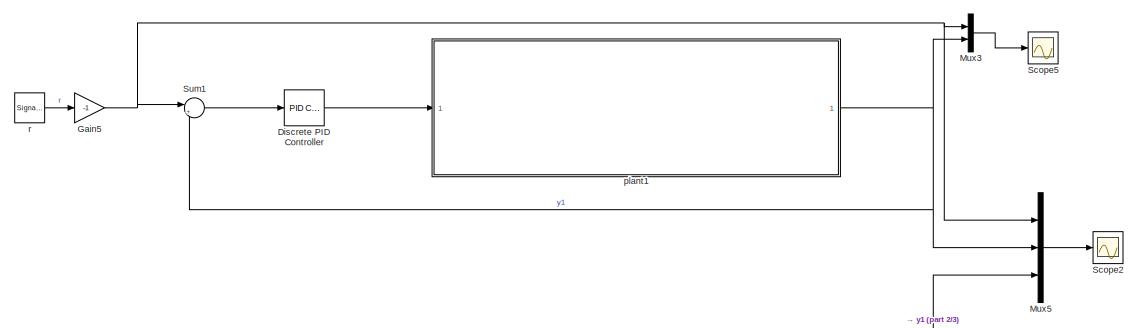
[diagram: root canvas - part 1/3, top left region]
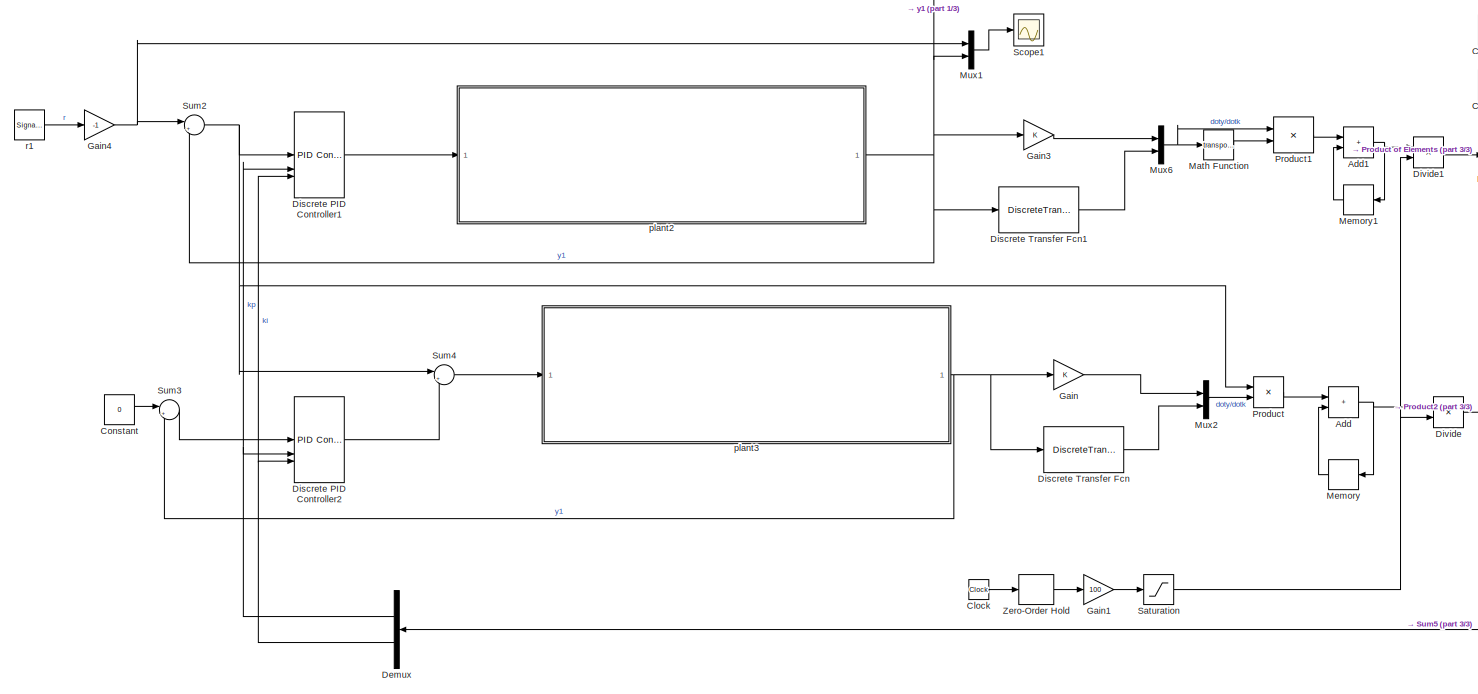
[diagram: root canvas - part 2/3, full width, bottom band]
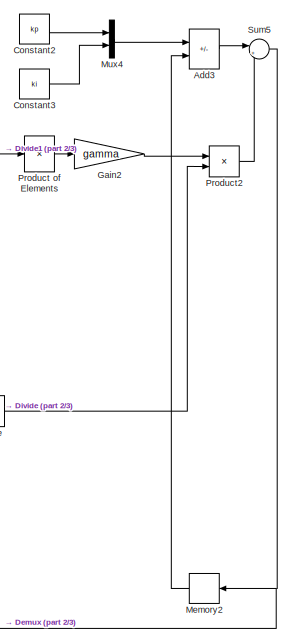
[diagram: root canvas - part 3/3, middle right region]
MODEL slx_8bdab0c45f02
KIND model
CONFIG AbsTol = auto
CONFIG EnableMultiTasking = off
CONFIG FixedStep = auto
CONFIG MaxStep = auto
CONFIG MinStep = auto
CONFIG RelTol = 1e-10
CONFIG SampleTimeConstraint = Unconstrained
CONFIG SolverName = VariableStepAuto
CONFIG StartTime = 0.0
CONFIG StopTime = 300
BLOCK [Sum] Add
  IconShape = rectangular
BLOCK [Sum] Add1
  IconShape = rectangular
BLOCK [Sum] Add3
  IconShape = rectangular
  Inputs = +-
BLOCK [Clock] Clock
  Decimation = 1
BLOCK [Constant] Constant
  SampleTime = 0.01
  Value = 0
BLOCK [Constant] Constant2
  Value = kp
BLOCK [Constant] Constant3
  Value = ki
BLOCK [Demux] Demux
  Outputs = 2
BLOCK [Reference] Discrete PID Controller  REF=slpidlib/PID Controller
  SourceBlock = slpidlib/PID Controller
  SourceType = PID 1dof
BLOCK [Reference] Discrete PID Controller1  REF=slpidlib/PID Controller
  SourceBlock = slpidlib/PID Controller
  SourceType = PID 1dof
BLOCK [Reference] Discrete PID Controller2  REF=slpidlib/PID Controller
  SourceBlock = slpidlib/PID Controller
  SourceType = PID 1dof
BLOCK [DiscreteTransferFcn] Discrete Transfer Fcn
  Denominator = [1 -1]
  InputPortMap = u0
  Numerator = [0.01 0]
  SampleTime = 0.01
BLOCK [DiscreteTransferFcn] Discrete Transfer Fcn1
  Denominator = [1 -1]
  InputPortMap = u0
  Numerator = [0.01 0]
  SampleTime = 0.01
BLOCK [Product] Divide
  Inputs = */
BLOCK [Product] Divide1
  Inputs = */
BLOCK [Gain] Gain
BLOCK [Gain] Gain1
  Gain = 100
BLOCK [Gain] Gain2
  Gain = gamma
BLOCK [Gain] Gain3
BLOCK [Gain] Gain4
  Gain = -1
BLOCK [Gain] Gain5
  Gain = -1
BLOCK [Math] Math Function
  Operator = transpose
BLOCK [Memory] Memory
  LinearizeAsDelay = on
BLOCK [Memory] Memory1
  LinearizeAsDelay = on
BLOCK [Memory] Memory2
  LinearizeAsDelay = on
BLOCK [Mux] Mux1
  DisplayOption = bar
  Inputs = 2
BLOCK [Mux] Mux2
  DisplayOption = bar
  Inputs = 2
BLOCK [Mux] Mux3
  DisplayOption = bar
  Inputs = 2
BLOCK [Mux] Mux4
  DisplayOption = bar
  Inputs = 2
BLOCK [Mux] Mux5
  DisplayOption = bar
  Inputs = 3
BLOCK [Mux] Mux6
  DisplayOption = bar
  Inputs = 2
BLOCK [Product] Product
BLOCK [Product] Product of Elements
  Inputs = /
  Multiplication = Matrix(*)
BLOCK [Product] Product1
  Multiplication = Matrix(*)
BLOCK [Product] Product2
  Multiplication = Matrix(*)
BLOCK [Saturate] Saturation
  LowerLimit = 1
  UpperLimit = inf
BLOCK [Scope] Scope1
  Floating = off
  NumInputPorts = 1
  ScopeSpecificationString = Simulink.scopes.TimeScopeBlockCfg('CurrentConfiguration', extmgr.ConfigurationSet(extmgr.Configuration('Core','General UI',true),extmgr.Configuration('Core','Source UI',true),extmgr.Configuration('Sources','WiredSimulink',true,'DataLoggingVariableName','ScopeData1'),extmgr.Configuration('Visuals','Time Domain',true,'SerializedDisplays',{struct('MinYLimReal','-0.12875','MaxYLimReal','1.15876','YLab...<+1482ch>
BLOCK [Scope] Scope2
  Floating = off
  NumInputPorts = 1
  ScopeSpecificationString = Simulink.scopes.TimeScopeBlockCfg('CurrentConfiguration', extmgr.ConfigurationSet(extmgr.Configuration('Core','General UI',true),extmgr.Configuration('Core','Source UI',true),extmgr.Configuration('Sources','WiredSimulink',true,'DataLoggingVariableName','ScopeData2'),extmgr.Configuration('Visuals','Time Domain',true,'SerializedDisplays',{struct('MinYLimReal','-67733116859302938391581549222628453226...<+3940ch>
BLOCK [Scope] Scope5
  Floating = off
  NumInputPorts = 1
  ScopeSpecificationString = Simulink.scopes.TimeScopeBlockCfg('CurrentConfiguration', extmgr.ConfigurationSet(extmgr.Configuration('Core','General UI',true),extmgr.Configuration('Core','Source UI',true),extmgr.Configuration('Sources','WiredSimulink',true,'DataLoggingVariableName','ScopeData1'),extmgr.Configuration('Visuals','Time Domain',true,'SerializedDisplays',{struct('MinYLimReal','-0.08491','MaxYLimReal','0.75779','YLab...<+1482ch>
BLOCK [Sum] Sum1
  Inputs = |+-
BLOCK [Sum] Sum2
  Inputs = |+-
BLOCK [Sum] Sum3
  Inputs = |+-
BLOCK [Sum] Sum4
  Inputs = |++
BLOCK [Sum] Sum5
  Inputs = |+-
BLOCK [ZeroOrderHold] Zero-Order Hold
  SampleTime = 0.01
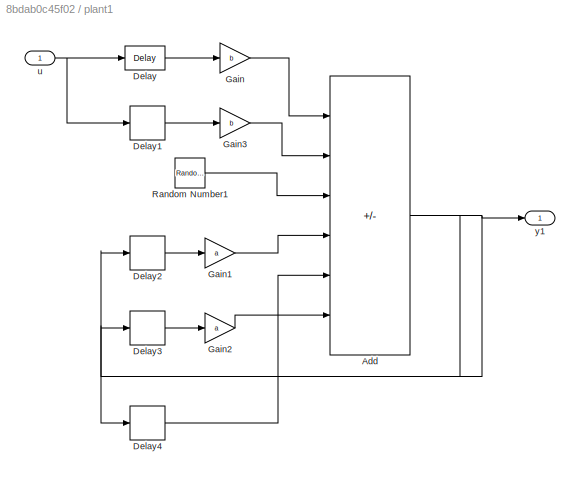
BLOCK [SubSystem] plant1
BLOCK [Sum] plant1/Add
  IconShape = rectangular
  Inputs = +-+++-
BLOCK [Delay] plant1/Delay
  DelayLength = d+1
  InitialCondition = 0
  InputPortMap = u0
  SampleTime = 0.01
BLOCK [Delay] plant1/Delay1
  DelayLength = d+2
  InitialCondition = 0
  InputPortMap = u0
  SampleTime = 0.01
BLOCK [Delay] plant1/Delay2
  DelayLength = 1
  InitialCondition = 0
  InputPortMap = u0
  SampleTime = 0.01
BLOCK [Delay] plant1/Delay3
  InitialCondition = 0
  InputPortMap = u0
  SampleTime = 0.01
BLOCK [Delay] plant1/Delay4
  DelayLength = 1
  InitialCondition = 0
  InputPortMap = u0
  SampleTime = 0.01
BLOCK [Gain] plant1/Gain
  Gain = b
BLOCK [Gain] plant1/Gain1
  Gain = a
BLOCK [Gain] plant1/Gain2
  Gain = a
BLOCK [Gain] plant1/Gain3
  Gain = b
BLOCK [RandomNumber] plant1/Random Number1
  SampleTime = 0.01
  Variance = 0.0000001
BLOCK [Inport] plant1/u
BLOCK [Outport] plant1/y1
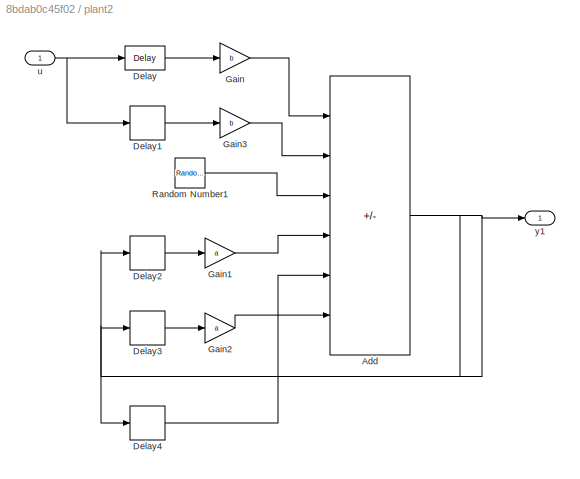
BLOCK [SubSystem] plant2
BLOCK [Sum] plant2/Add
  IconShape = rectangular
  Inputs = +-+++-
BLOCK [Delay] plant2/Delay
  DelayLength = d+1
  InitialCondition = 0
  InputPortMap = u0
  SampleTime = 0.01
BLOCK [Delay] plant2/Delay1
  DelayLength = d+2
  InitialCondition = 0
  InputPortMap = u0
  SampleTime = 0.01
BLOCK [Delay] plant2/Delay2
  DelayLength = 1
  InitialCondition = 0
  InputPortMap = u0
  SampleTime = 0.01
BLOCK [Delay] plant2/Delay3
  InitialCondition = 0
  InputPortMap = u0
  SampleTime = 0.01
BLOCK [Delay] plant2/Delay4
  DelayLength = 1
  InitialCondition = 0
  InputPortMap = u0
  SampleTime = 0.01
BLOCK [Gain] plant2/Gain
  Gain = b
BLOCK [Gain] plant2/Gain1
  Gain = a
BLOCK [Gain] plant2/Gain2
  Gain = a
BLOCK [Gain] plant2/Gain3
  Gain = b
BLOCK [RandomNumber] plant2/Random Number1
  SampleTime = 0.01
  Variance = 0.0000001
BLOCK [Inport] plant2/u
BLOCK [Outport] plant2/y1
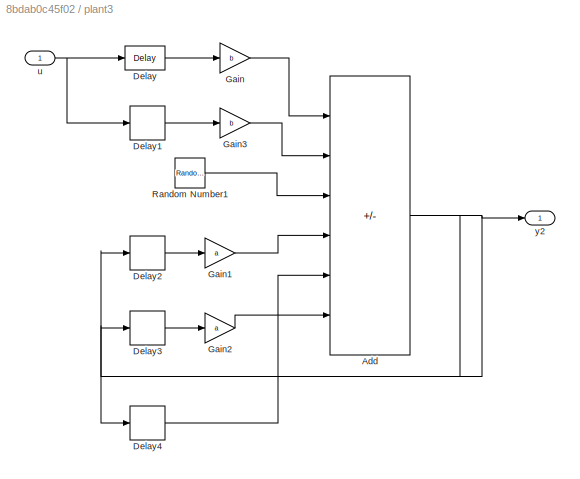
BLOCK [SubSystem] plant3
BLOCK [Sum] plant3/Add
  IconShape = rectangular
  Inputs = +-+++-
BLOCK [Delay] plant3/Delay
  DelayLength = d+1
  InitialCondition = 0
  InputPortMap = u0
  SampleTime = 0.01
BLOCK [Delay] plant3/Delay1
  DelayLength = d+2
  InitialCondition = 0
  InputPortMap = u0
  SampleTime = 0.01
BLOCK [Delay] plant3/Delay2
  DelayLength = 1
  InitialCondition = 0
  InputPortMap = u0
  SampleTime = 0.01
BLOCK [Delay] plant3/Delay3
  InitialCondition = 0
  InputPortMap = u0
  SampleTime = 0.01
BLOCK [Delay] plant3/Delay4
  DelayLength = 1
  InitialCondition = 0
  InputPortMap = u0
  SampleTime = 0.01
BLOCK [Gain] plant3/Gain
  Gain = b
BLOCK [Gain] plant3/Gain1
  Gain = a
BLOCK [Gain] plant3/Gain2
  Gain = a
BLOCK [Gain] plant3/Gain3
  Gain = b
BLOCK [RandomNumber] plant3/Random Number1
  SampleTime = 0.01
  Variance = 0.0000001
BLOCK [Inport] plant3/u
BLOCK [Outport] plant3/y2
BLOCK [SignalGenerator] r
  Frequency = 0.001
BLOCK [SignalGenerator] r1
  Frequency = 0.001
NET Add1:1 -> Divide1:1, Memory1:1
LINE Add3:1 -> Sum5:1
NET Add:1 -> Divide:1, Memory:1
LINE Clock:1 -> Zero-Order Hold:1
LINE Constant2:1 -> Mux4:1
LINE Constant3:1 -> Mux4:2
LINE Constant:1 -> Sum3:1
NET Demux:1 -> Discrete PID Controller1:2, Discrete PID Controller2:2
NET Demux:2 -> Discrete PID Controller1:3, Discrete PID Controller2:3
LINE Discrete PID Controller1:1 -> plant2:1
LINE Discrete PID Controller2:1 -> Sum4:2
LINE Discrete PID Controller:1 -> plant1:1
LINE Discrete Transfer Fcn1:1 -> Mux6:2
LINE Discrete Transfer Fcn:1 -> Mux2:2
LINE Divide1:1 -> Product of Elements:1
LINE Divide:1 -> Product2:2
LINE Gain1:1 -> Saturation:1
LINE Gain2:1 -> Product2:1
LINE Gain3:1 -> Mux6:1
NET Gain4:1 -> Mux1:1, Sum2:1
NET Gain5:1 -> Mux3:1, Mux5:1, Sum1:1
LINE Gain:1 -> Mux2:1
LINE Math Function:1 -> Product1:2
LINE Memory1:1 -> Add1:2
LINE Memory2:1 -> Add3:2
LINE Memory:1 -> Add:2
LINE Mux1:1 -> Scope1:1
LINE Mux2:1 -> Product:2
LINE Mux3:1 -> Scope5:1
LINE Mux4:1 -> Add3:1
LINE Mux5:1 -> Scope2:1
NET Mux6:1 -> Math Function:1, Product1:1
LINE Product of Elements:1 -> Gain2:1
LINE Product1:1 -> Add1:1
LINE Product2:1 -> Sum5:2
LINE Product:1 -> Add:1
NET Saturation:1 -> Divide1:2, Divide:2
LINE Sum1:1 -> Discrete PID Controller:1
NET Sum2:1 -> Discrete PID Controller1:1, Product:1, Sum4:1
LINE Sum3:1 -> Discrete PID Controller2:1
LINE Sum4:1 -> plant3:1
NET Sum5:1 -> Demux:1, Memory2:1
LINE Zero-Order Hold:1 -> Gain1:1
NET plant1/Add:1 -> plant1/Delay2:1, plant1/Delay3:1, plant1/Delay4:1, plant1/y1:1
LINE plant1/Delay1:1 -> plant1/Gain3:1
LINE plant1/Delay2:1 -> plant1/Gain1:1
LINE plant1/Delay3:1 -> plant1/Gain2:1
LINE plant1/Delay4:1 -> plant1/Add:5
LINE plant1/Delay:1 -> plant1/Gain:1
LINE plant1/Gain1:1 -> plant1/Add:4
LINE plant1/Gain2:1 -> plant1/Add:6
LINE plant1/Gain3:1 -> plant1/Add:2
LINE plant1/Gain:1 -> plant1/Add:1
LINE plant1/Random Number1:1 -> plant1/Add:3
NET plant1/u:1 -> plant1/Delay1:1, plant1/Delay:1
NET plant1:1 -> Mux3:2, Mux5:2, Sum1:2
NET plant2/Add:1 -> plant2/Delay2:1, plant2/Delay3:1, plant2/Delay4:1, plant2/y1:1
LINE plant2/Delay1:1 -> plant2/Gain3:1
LINE plant2/Delay2:1 -> plant2/Gain1:1
LINE plant2/Delay3:1 -> plant2/Gain2:1
LINE plant2/Delay4:1 -> plant2/Add:5
LINE plant2/Delay:1 -> plant2/Gain:1
LINE plant2/Gain1:1 -> plant2/Add:4
LINE plant2/Gain2:1 -> plant2/Add:6
LINE plant2/Gain3:1 -> plant2/Add:2
LINE plant2/Gain:1 -> plant2/Add:1
LINE plant2/Random Number1:1 -> plant2/Add:3
NET plant2/u:1 -> plant2/Delay1:1, plant2/Delay:1
NET plant2:1 -> Discrete Transfer Fcn1:1, Gain3:1, Mux1:2, Mux5:3, Sum2:2
NET plant3/Add:1 -> plant3/Delay2:1, plant3/Delay3:1, plant3/Delay4:1, plant3/y2:1
LINE plant3/Delay1:1 -> plant3/Gain3:1
LINE plant3/Delay2:1 -> plant3/Gain1:1
LINE plant3/Delay3:1 -> plant3/Gain2:1
LINE plant3/Delay4:1 -> plant3/Add:5
LINE plant3/Delay:1 -> plant3/Gain:1
LINE plant3/Gain1:1 -> plant3/Add:4
LINE plant3/Gain2:1 -> plant3/Add:6
LINE plant3/Gain3:1 -> plant3/Add:2
LINE plant3/Gain:1 -> plant3/Add:1
LINE plant3/Random Number1:1 -> plant3/Add:3
NET plant3/u:1 -> plant3/Delay1:1, plant3/Delay:1
NET plant3:1 -> Discrete Transfer Fcn:1, Gain:1, Sum3:2
LINE r1:1 -> Gain4:1
LINE r:1 -> Gain5:1
note: NET lines group one-source signal fan-out (src -> all destinations, sorted); 1:1 wires keep LINE
